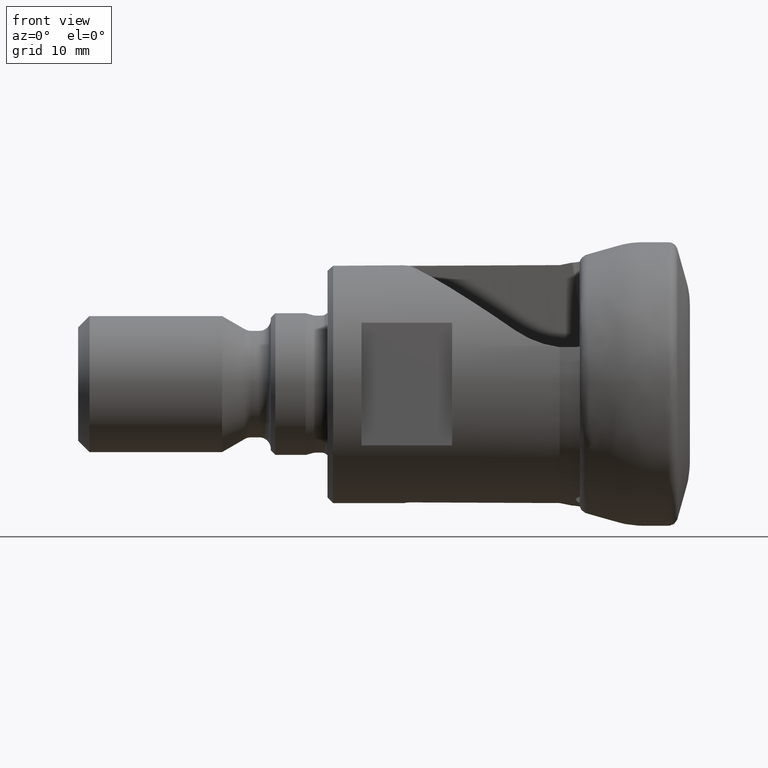
[diagram: clean part render]
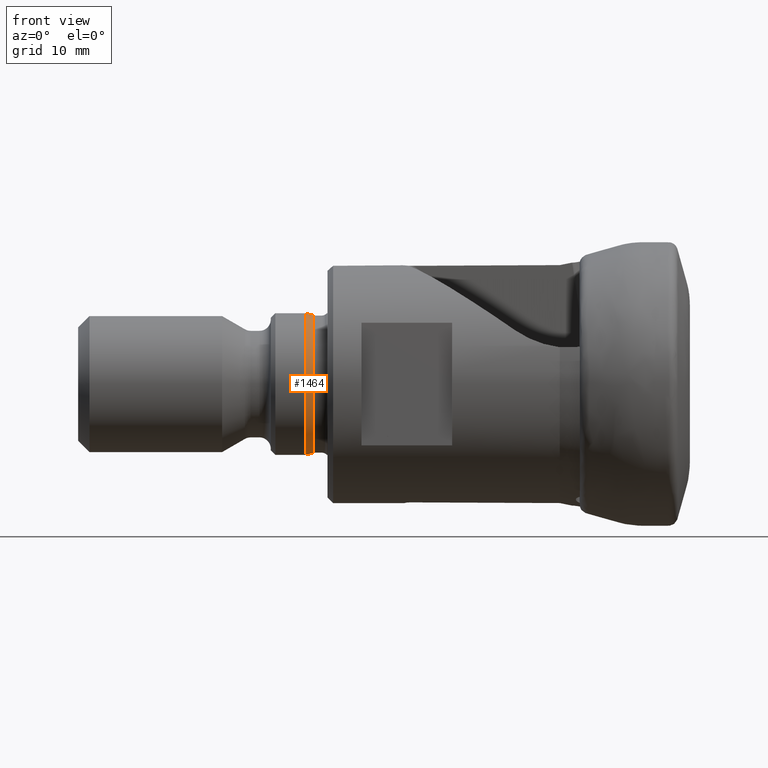
[diagram: same view with one face highlighted and labeled with its STEP entity id]
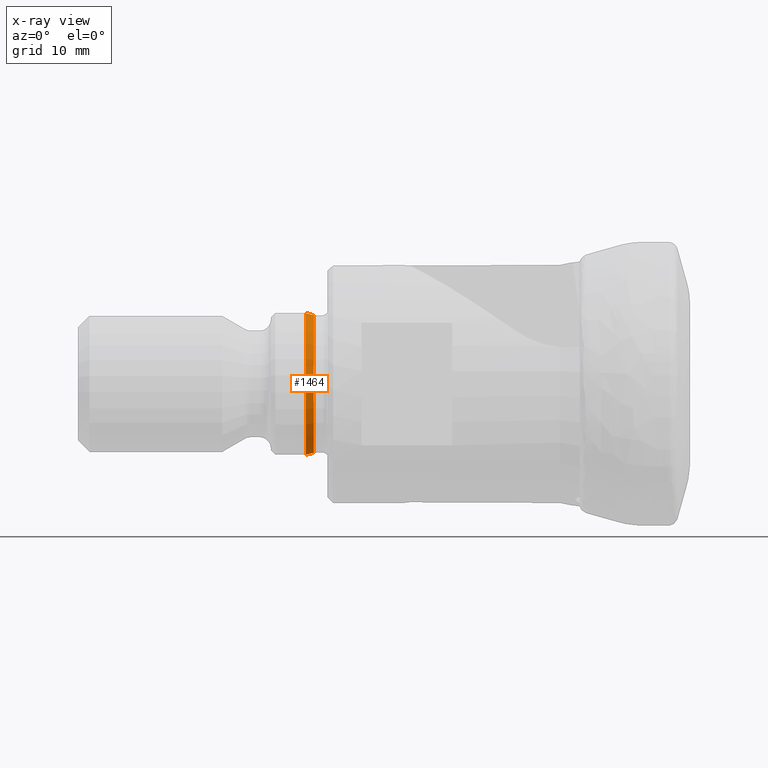
[diagram: x-ray of the same camera — body ghosted, the highlighted face saturated]
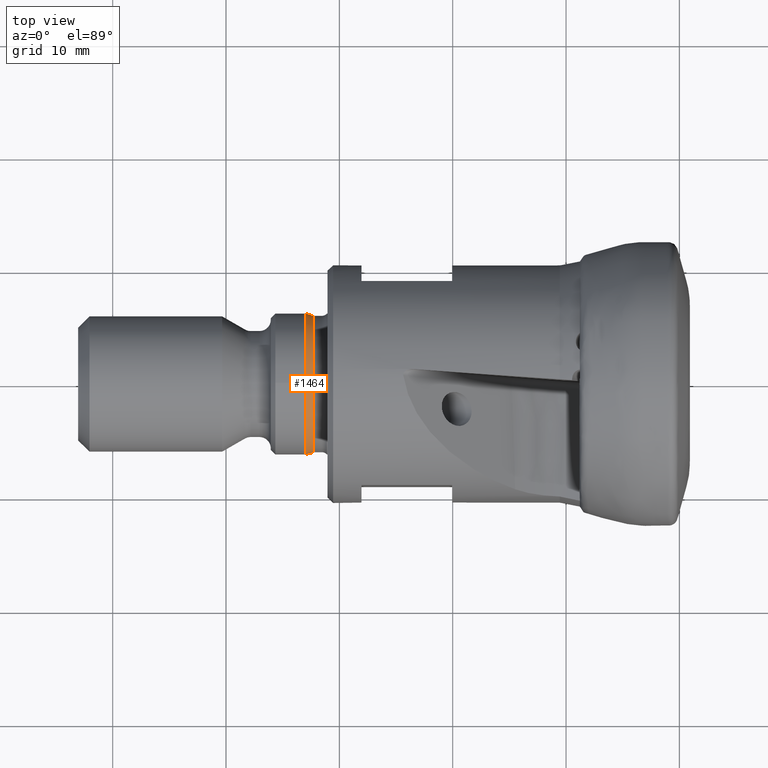
[diagram: same view with one face highlighted and labeled with its STEP entity id]
A machine part, front view. The second image highlights one B-rep face of the part: STEP entity #1464.
The next image is the same camera in x-ray: the body ghosted, the highlighted face saturated — about 0% of this face is hidden behind the body in this view.
A second angle (top view) of the same face is appended — the face is thin or edge-on in the first view.
In plain terms, the highlighted conical surface has half-angle 15 deg.
Its self-contained STEP definition (entity closure, byte-faithful):
#518 = EDGE_LOOP ( 'NONE', ( #552 ) ) ;
#552 = ORIENTED_EDGE ( 'NONE', *, *, #2153, .F. ) ;
#555 = CIRCLE ( 'NONE', #2935, 6.250000000000000000 ) ;
#600 = FACE_OUTER_BOUND ( 'NONE', #2576, .T. ) ;
#965 = CARTESIAN_POINT ( 'NONE',  ( -32.96283113125006300, 0.0000000000000000000, 0.0000000000000000000 ) ) ;
#1245 = CARTESIAN_POINT ( 'NONE',  ( -32.27968462391680000, 0.0000000000000000000, 0.0000000000000000000 ) ) ;
#1271 = FACE_BOUND ( 'NONE', #518, .T. ) ;
#1278 = DIRECTION ( 'NONE',  ( 0.0000000000000000000, 0.0000000000000000000, 1.000000000000000000 ) ) ;
#1315 = CONICAL_SURFACE ( 'NONE', #1918, 6.066951445047914500, 0.2617993877991455800 ) ;
#1464 = ADVANCED_FACE ( 'NONE', ( #1271, #600 ), #1315, .T. ) ;
#1555 = DIRECTION ( 'NONE',  ( 0.0000000000000000000, 0.0000000000000000000, -1.000000000000000000 ) ) ;
#1600 = VERTEX_POINT ( 'NONE', #3829 ) ;
#1652 = CARTESIAN_POINT ( 'NONE',  ( -32.96283113125006300, 0.0000000000000000000, 6.250000000000000000 ) ) ;
#1918 = AXIS2_PLACEMENT_3D ( 'NONE', #2880, #2929, #1927 ) ;
#1927 = DIRECTION ( 'NONE',  ( 0.0000000000000000000, 0.0000000000000000000, 1.000000000000000000 ) ) ;
#2153 = EDGE_CURVE ( 'NONE', #1600, #1600, #3658, .T. ) ;
#2188 = AXIS2_PLACEMENT_3D ( 'NONE', #1245, #3440, #1555 ) ;
#2389 = ORIENTED_EDGE ( 'NONE', *, *, #3980, .T. ) ;
#2576 = EDGE_LOOP ( 'NONE', ( #2389 ) ) ;
#2880 = CARTESIAN_POINT ( 'NONE',  ( -32.27968462391680000, 0.0000000000000000000, 0.0000000000000000000 ) ) ;
#2929 = DIRECTION ( 'NONE',  ( -1.000000000000000000, 0.0000000000000000000, 0.0000000000000000000 ) ) ;
#2935 = AXIS2_PLACEMENT_3D ( 'NONE', #965, #3161, #1278 ) ;
#3161 = DIRECTION ( 'NONE',  ( 1.000000000000000000, -0.0000000000000000000, -0.0000000000000000000 ) ) ;
#3440 = DIRECTION ( 'NONE',  ( 1.000000000000000000, -0.0000000000000000000, -0.0000000000000000000 ) ) ;
#3658 = CIRCLE ( 'NONE', #2188, 6.066951445047914500 ) ;
#3805 = VERTEX_POINT ( 'NONE', #1652 ) ;
#3829 = CARTESIAN_POINT ( 'NONE',  ( -32.27968462391680000, 0.0000000000000000000, -6.066951445047914500 ) ) ;
#3980 = EDGE_CURVE ( 'NONE', #3805, #3805, #555, .T. ) ;